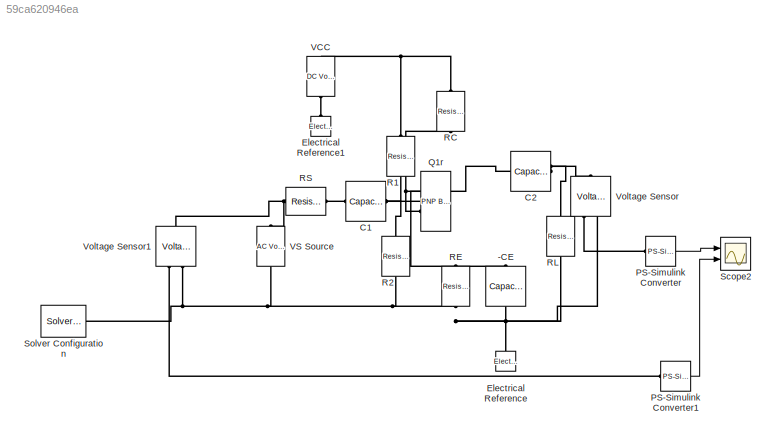
MODEL slx_59ca620946ea
KIND model
CONFIG AbsTol = auto
CONFIG FixedStep = 1e-4
CONFIG MaxStep = 1e-4
CONFIG MinStep = 1e-4
CONFIG RelTol = 1e-4
CONFIG SampleTimeConstraint = Unconstrained
CONFIG Solver = ode23t
CONFIG SolverMode = Auto
CONFIG SolverName = ode23t
CONFIG StartTime = 0.0
CONFIG StopTime = 5e-3
BLOCK [Reference] -CE  REF=fl_lib/Electrical/Electrical Elements/Capacitor
  ClassName = capacitor
  ComponentPath = foundation.electrical.elements.capacitor
  ComponentVariantNames = capacitor
  ComponentVariants = foundation.electrical.elements.capacitor
  LogSimulationData = off
  Ports = [0, 0, 0, 0, 0, 1, 1]
  SchemaVersion = 1
  SourceBlock = fl_lib/Electrical/Electrical Elements/Capacitor
  SourceFile = foundation.electrical.elements.capacitor
  SourceType = Capacitor
  c = 10
  c_unit = uF
  g = 0
  g_unit = 1/Ohm
  i = 0
  i_priority = High
  i_specify = off
  i_unit = A
  r = 1e-6
  r_unit = Ohm
  v = 0
  v_priority = High
  v_specify = off
  v_unit = V
  vc = 0
  vc_priority = High
  vc_specify = off
  vc_unit = V
BLOCK [Reference] C1  REF=fl_lib/Electrical/Electrical Elements/Capacitor
  ClassName = capacitor
  ComponentPath = foundation.electrical.elements.capacitor
  ComponentVariantNames = capacitor
  ComponentVariants = foundation.electrical.elements.capacitor
  LogSimulationData = off
  Ports = [0, 0, 0, 0, 0, 1, 1]
  SchemaVersion = 1
  SourceBlock = fl_lib/Electrical/Electrical Elements/Capacitor
  SourceFile = foundation.electrical.elements.capacitor
  SourceType = Capacitor
  c = 10
  c_unit = uF
  g = 0
  g_unit = 1/Ohm
  i = 0
  i_priority = High
  i_specify = off
  i_unit = A
  r = 1e-6
  r_unit = Ohm
  v = 0
  v_priority = High
  v_specify = off
  v_unit = V
  vc = 0
  vc_priority = High
  vc_specify = off
  vc_unit = V
BLOCK [Reference] C2  REF=fl_lib/Electrical/Electrical Elements/Capacitor
  ClassName = capacitor
  ComponentPath = foundation.electrical.elements.capacitor
  ComponentVariantNames = capacitor
  ComponentVariants = foundation.electrical.elements.capacitor
  LogSimulationData = off
  Ports = [0, 0, 0, 0, 0, 1, 1]
  SchemaVersion = 1
  SourceBlock = fl_lib/Electrical/Electrical Elements/Capacitor
  SourceFile = foundation.electrical.elements.capacitor
  SourceType = Capacitor
  c = 10
  c_unit = uF
  g = 0
  g_unit = 1/Ohm
  i = 0
  i_priority = High
  i_specify = off
  i_unit = A
  r = 1e-6
  r_unit = Ohm
  v = 0
  v_priority = High
  v_specify = off
  v_unit = V
  vc = 0
  vc_priority = High
  vc_specify = off
  vc_unit = V
BLOCK [Reference] Electrical Reference  REF=fl_lib/Electrical/Electrical Elements/Electrical Reference
  ClassName = reference
  ComponentPath = foundation.electrical.elements.reference
  ComponentVariantNames = reference
  ComponentVariants = foundation.electrical.elements.reference
  LogSimulationData = off
  Ports = [0, 0, 0, 0, 0, 1]
  SchemaVersion = 1
  SourceBlock = fl_lib/Electrical/Electrical Elements/Electrical Reference
  SourceFile = foundation.electrical.elements.reference
  SourceType = Electrical Reference
BLOCK [Reference] Electrical Reference1  REF=fl_lib/Electrical/Electrical Elements/Electrical Reference
  ClassName = reference
  ComponentPath = foundation.electrical.elements.reference
  ComponentVariantNames = reference
  ComponentVariants = foundation.electrical.elements.reference
  LogSimulationData = off
  Ports = [0, 0, 0, 0, 0, 1]
  SchemaVersion = 1
  SourceBlock = fl_lib/Electrical/Electrical Elements/Electrical Reference
  SourceFile = foundation.electrical.elements.reference
  SourceType = Electrical Reference
BLOCK [Reference] PS-Simulink Converter  REF=nesl_utility/PS-Simulink
Converter
  AffineConversion = off
  Frequencies = []
  LeftPortType = input
  PhysicalDomain = network_engine_domain
  Ports = [0, 1, 0, 0, 0, 1]
  PseudoPeriodic = off
  RightPortType = output
  SourceBlock = nesl_utility/PS-Simulink\nConverter
  SourceType = PS-Simulink\nConverter
  SubClassName = ps_output
  Unit = 1
BLOCK [Reference] PS-Simulink Converter1  REF=nesl_utility/PS-Simulink
Converter
  AffineConversion = off
  Frequencies = []
  LeftPortType = input
  PhysicalDomain = network_engine_domain
  Ports = [0, 1, 0, 0, 0, 1]
  PseudoPeriodic = off
  RightPortType = output
  SourceBlock = nesl_utility/PS-Simulink\nConverter
  SourceType = PS-Simulink\nConverter
  SubClassName = ps_output
  Unit = 1
BLOCK [Reference] Q1r  REF=elec_lib/Semiconductor
Devices/PNP Bipolar
Transistor
  BF = 100
  BF_unit = 1
  BR = 1
  BR_unit = 1
  C_BC = 5
  C_BC_unit = pF
  C_BE = 5
  C_BE_unit = pF
  ClassName = Simscape variant
  ComponentPath = elec.semiconductors.bjt_pnp
  ComponentVariantNames = No thermal port, Show thermal port
  ComponentVariants = elec.semiconductors.bjt_pnp, elec.semiconductors.bjt_pnp_thermal
  EG = 1.11
  EG_unit = eV
  I1 = -0.5
  I1_T2 = -0.5
  I1_T2_unit = mA
  I1_unit = mA
  IS = 1e-14
  IS_unit = A
  Ic_h = -1
  Ic_h_unit = mA
  LogSimulationData = off
  Ports = [0, 0, 0, 0, 0, 1, 2]
  RB = 1
  RB_unit = Ohm
  RC = 0.01
  RC_unit = Ohm
  RE = 1e-4
  RE_unit = Ohm
  Rth = [ 0 10 ]
  Rth_unit = K/W
  SchemaVersion = 1
  SourceBlock = elec_lib/Semiconductor\nDevices/PNP Bipolar\nTransistor
  SourceFile = elec.semiconductors.bjt_pnp
  SourceType = PNP Bipolar\nTransistor
  TF = 0
  TF_unit = us
  TR = 0
  TR_unit = us
  TdeviceDatasheet = 25
  TdeviceDatasheet_unit = C
  TdeviceEquCoeff = 25
  TdeviceEquCoeff_unit = C
  Tmeas = 25
  Tmeas2 = 125
  Tmeas2_unit = C
  Tmeas_unit = C
  V1 = -0.55
  V1_T2 = -0.45
  V1_T2_unit = V
  V1_unit = V
  VAF = 200
  VAF_unit = V
  Vce_h = -5
  Vce_h_unit = V
  XTB = 0
  XTB_unit = 1
  XTI = 3
  XTI_unit = 1
  ec = 1
  ec_unit = 1
  hfe = 50
  hfe_T2 = 125
  hfe_T2_unit = 1
  hfe_unit = 1
  hoe = 5e-5
  hoe_unit = 1/Ohm
  parameterization = 1
  parameterization_unit = 1
  prmDatasheet = 1
  prmDatasheet_unit = 1
  prmEquCoeff = 1
  prmEquCoeff_unit = 1
  thermal_mass = [ 0 1 ]
  thermal_mass_initial_temperatures = [ 25 25 ]
  thermal_mass_initial_temperatures_unit = C
  thermal_mass_parameterization = 1
  thermal_mass_parameterization_unit = 1
  thermal_mass_unit = J/K
  thermal_time_constant = [ 0 10 ]
  thermal_time_constant_unit = s
BLOCK [Reference] R1  REF=fl_lib/Electrical/Electrical Elements/Resistor
  ClassName = resistor
  ComponentPath = foundation.electrical.elements.resistor
  ComponentVariantNames = resistor
  ComponentVariants = foundation.electrical.elements.resistor
  LogSimulationData = off
  Ports = [0, 0, 0, 0, 0, 1, 1]
  R = 47
  R_unit = kOhm
  SchemaVersion = 1
  SourceBlock = fl_lib/Electrical/Electrical Elements/Resistor
  SourceFile = foundation.electrical.elements.resistor
  SourceType = Resistor
  i = 0
  i_priority = High
  i_specify = off
  i_unit = A
  v = 0
  v_priority = High
  v_specify = off
  v_unit = V
BLOCK [Reference] R2  REF=fl_lib/Electrical/Electrical Elements/Resistor
  ClassName = resistor
  ComponentPath = foundation.electrical.elements.resistor
  ComponentVariantNames = resistor
  ComponentVariants = foundation.electrical.elements.resistor
  LogSimulationData = off
  Ports = [0, 0, 0, 0, 0, 1, 1]
  R = 5
  R_unit = kOhm
  SchemaVersion = 1
  SourceBlock = fl_lib/Electrical/Electrical Elements/Resistor
  SourceFile = foundation.electrical.elements.resistor
  SourceType = Resistor
  i = 0
  i_priority = High
  i_specify = off
  i_unit = A
  v = 0
  v_priority = High
  v_specify = off
  v_unit = V
BLOCK [Reference] RC  REF=fl_lib/Electrical/Electrical Elements/Resistor
  ClassName = resistor
  ComponentPath = foundation.electrical.elements.resistor
  ComponentVariantNames = resistor
  ComponentVariants = foundation.electrical.elements.resistor
  LogSimulationData = off
  Ports = [0, 0, 0, 0, 0, 1, 1]
  R = 10
  R_unit = kOhm
  SchemaVersion = 1
  SourceBlock = fl_lib/Electrical/Electrical Elements/Resistor
  SourceFile = foundation.electrical.elements.resistor
  SourceType = Resistor
  i = 0
  i_priority = High
  i_specify = off
  i_unit = A
  v = 0
  v_priority = High
  v_specify = off
  v_unit = V
BLOCK [Reference] RE  REF=fl_lib/Electrical/Electrical Elements/Resistor
  ClassName = resistor
  ComponentPath = foundation.electrical.elements.resistor
  ComponentVariantNames = resistor
  ComponentVariants = foundation.electrical.elements.resistor
  LogSimulationData = off
  Ports = [0, 0, 0, 0, 0, 1, 1]
  R = 2
  R_unit = kOhm
  SchemaVersion = 1
  SourceBlock = fl_lib/Electrical/Electrical Elements/Resistor
  SourceFile = foundation.electrical.elements.resistor
  SourceType = Resistor
  i = 0
  i_priority = High
  i_specify = off
  i_unit = A
  v = 0
  v_priority = High
  v_specify = off
  v_unit = V
BLOCK [Reference] RL  REF=fl_lib/Electrical/Electrical Elements/Resistor
  ClassName = resistor
  ComponentPath = foundation.electrical.elements.resistor
  ComponentVariantNames = resistor
  ComponentVariants = foundation.electrical.elements.resistor
  LogSimulationData = off
  Ports = [0, 0, 0, 0, 0, 1, 1]
  R = 20
  R_unit = kOhm
  SchemaVersion = 1
  SourceBlock = fl_lib/Electrical/Electrical Elements/Resistor
  SourceFile = foundation.electrical.elements.resistor
  SourceType = Resistor
  i = 0
  i_priority = High
  i_specify = off
  i_unit = A
  v = 0
  v_priority = High
  v_specify = off
  v_unit = V
BLOCK [Reference] RS  REF=fl_lib/Electrical/Electrical Elements/Resistor
  ClassName = resistor
  ComponentPath = foundation.electrical.elements.resistor
  ComponentVariantNames = resistor
  ComponentVariants = foundation.electrical.elements.resistor
  LogSimulationData = off
  Ports = [0, 0, 0, 0, 0, 1, 1]
  R = 500
  R_unit = Ohm
  SchemaVersion = 1
  SourceBlock = fl_lib/Electrical/Electrical Elements/Resistor
  SourceFile = foundation.electrical.elements.resistor
  SourceType = Resistor
  i = 0
  i_priority = High
  i_specify = off
  i_unit = A
  v = 0
  v_priority = High
  v_specify = off
  v_unit = V
BLOCK [Scope] Scope2
  Floating = off
  NumInputPorts = 2
  Ports = [2]
  YMax = 1~5
  YMin = -0.8~-5
BLOCK [Reference] Solver Configuration  REF=nesl_utility/Solver
Configuration
  AbsTol = 1e-06
  Accelerate = off
  AutomaticFiltering = on
  DelaysMemoryBudget = 1024
  DoDC = on
  DoFixedCost = on
  EnableSwitchedLinearOptims = on
  FilteringTimeConstant = 0.001
  FrequencyDomain = off
  Harmonics = []
  LeftPortType = input
  LinearAlgebra = Sparse
  LocalSolverChoice = NE_BACKWARD_EULER_ADVANCER
  LocalSolverSampleTime = 1e-6
  MaxModeIter = 2
  MaxNonlinIter = 3
  MinStep = 1e-09
  NumHomotopyIterations = 100
  PhysicalDomain = network_engine_domain
  Ports = [0, 0, 0, 0, 0, 0, 1]
  Profile = off
  RelTol = 0.001
  ResidualTolerance = 1e-09
  RevertToSquareIcSolve = off
  RightPortType = generic
  SimulateNoise = off
  SourceBlock = nesl_utility/Solver\nConfiguration
  SourceType = Solver\nConfiguration
  SubClassName = solver
  ToWorkspace = off
  Tones = []
  UseCCode = off
  UseLocalSampling = off
  UseLocalSolver = on
BLOCK [Reference] VCC  REF=fl_lib/Electrical/Electrical Sources/DC Voltage Source
  ClassName = dc_voltage
  ComponentPath = foundation.electrical.sources.dc_voltage
  ComponentVariantNames = dc_voltage
  ComponentVariants = foundation.electrical.sources.dc_voltage
  LogSimulationData = off
  Ports = [0, 0, 0, 0, 0, 1, 1]
  SchemaVersion = 1
  SourceBlock = fl_lib/Electrical/Electrical Sources/DC Voltage Source
  SourceFile = foundation.electrical.sources.dc_voltage
  SourceType = DC Voltage Source
  v0 = 15
  v0_unit = V
BLOCK [Reference] VS Source  REF=fl_lib/Electrical/Electrical Sources/AC Voltage Source
  ClassName = ac_voltage
  ComponentPath = foundation.electrical.sources.ac_voltage
  ComponentVariantNames = ac_voltage
  ComponentVariants = foundation.electrical.sources.ac_voltage
  LogSimulationData = off
  Ports = [0, 0, 0, 0, 0, 1, 1]
  SchemaVersion = 1
  SourceBlock = fl_lib/Electrical/Electrical Sources/AC Voltage Source
  SourceFile = foundation.electrical.sources.ac_voltage
  SourceType = AC Voltage Source
  amp = 10
  amp_unit = mV
  frequency = 1
  frequency_unit = kHz
  omega = 0
  omega_unit = rad/s
  shift = 0
  shift_unit = deg
BLOCK [Reference] Voltage Sensor  REF=fl_lib/Electrical/Electrical Sensors/Voltage Sensor
  ClassName = voltage
  ComponentPath = foundation.electrical.sensors.voltage
  ComponentVariantNames = voltage
  ComponentVariants = foundation.electrical.sensors.voltage
  LogSimulationData = off
  Ports = [0, 0, 0, 0, 0, 1, 2]
  SchemaVersion = 1
  SourceBlock = fl_lib/Electrical/Electrical Sensors/Voltage Sensor
  SourceFile = foundation.electrical.sensors.voltage
  SourceType = Voltage Sensor
BLOCK [Reference] Voltage Sensor1  REF=fl_lib/Electrical/Electrical Sensors/Voltage Sensor
  ClassName = voltage
  ComponentPath = foundation.electrical.sensors.voltage
  ComponentVariantNames = voltage
  ComponentVariants = foundation.electrical.sensors.voltage
  LogSimulationData = off
  Ports = [0, 0, 0, 0, 0, 1, 2]
  SchemaVersion = 1
  SourceBlock = fl_lib/Electrical/Electrical Sensors/Voltage Sensor
  SourceFile = foundation.electrical.sensors.voltage
  SourceType = Voltage Sensor
LINE PS-Simulink Converter1:1 -> Scope2:2
LINE PS-Simulink Converter:1 -> Scope2:1
PNET net1: -CE:LConn1 -- Q1r:RConn1 -- RE:LConn1
PNET net2: -CE:RConn1 -- Electrical Reference:LConn1 -- R2:RConn1 -- RE:RConn1 -- RL:RConn1 -- Solver Configuration:RConn1 -- VS Source:RConn1 -- Voltage Sensor1:RConn2 -- Voltage Sensor:RConn2
PLINE C1:LConn1 -- RS:LConn1
PNET net3: C1:RConn1 -- Q1r:LConn1 -- R1:RConn1 -- R2:LConn1
PNET net4: C2:LConn1 -- Q1r:RConn2 -- RC:RConn1
PNET net5: C2:RConn1 -- RL:LConn1 -- Voltage Sensor:LConn1
PLINE Electrical Reference1:LConn1 -- VCC:LConn1
PLINE PS-Simulink Converter1:LConn1 -- Voltage Sensor1:RConn1
PLINE PS-Simulink Converter:LConn1 -- Voltage Sensor:RConn1
PNET net6: R1:LConn1 -- RC:LConn1 -- VCC:RConn1
PNET net7: RS:RConn1 -- VS Source:LConn1 -- Voltage Sensor1:LConn1
note: PNET lines group multi-terminal physical nets as a canonical sorted terminal list (undirected conserving connections); 2-terminal nets keep the pairwise PLINE form
